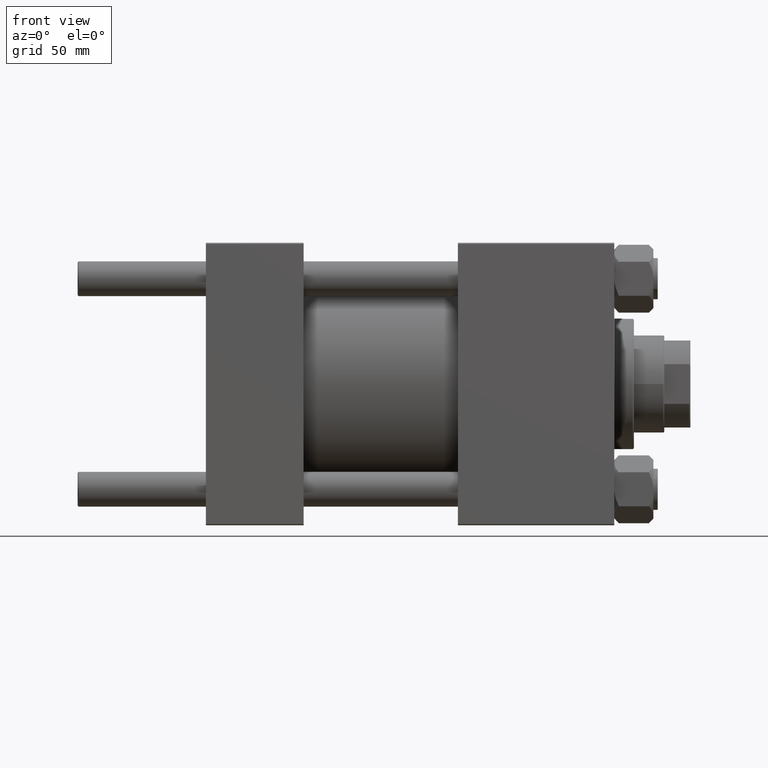
[diagram: clean part render]
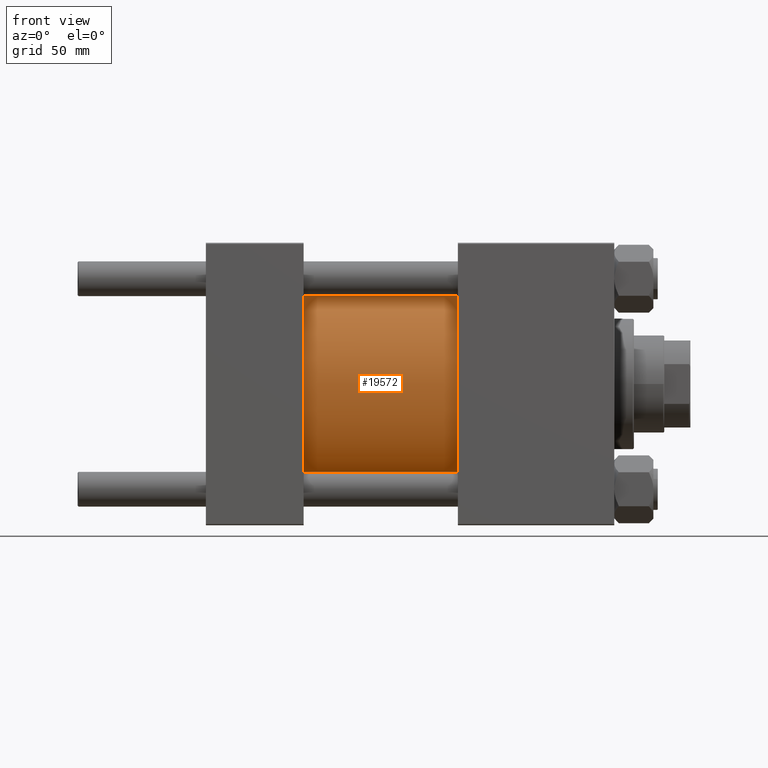
[diagram: same view with one face highlighted and labeled with its STEP entity id]
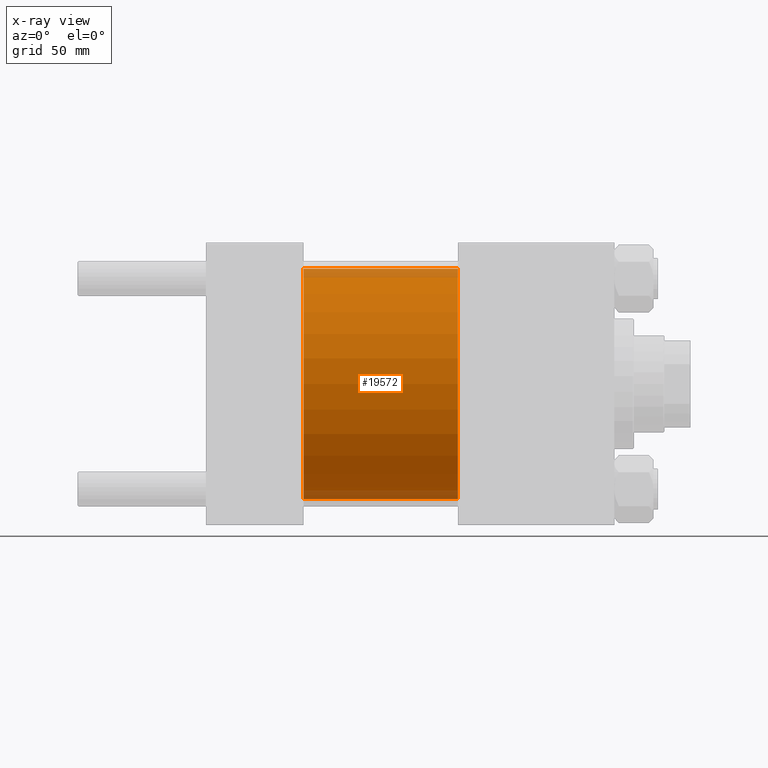
[diagram: x-ray of the same camera — body ghosted, the highlighted face saturated]
A machine part, front view. The second image highlights one B-rep face of the part: STEP entity #19572.
The next image is the same camera in x-ray: the body ghosted, the highlighted face saturated — about 8% of this face is hidden behind the body in this view.
In plain terms, the highlighted cylindrical surface (partial cylindrical patch) has radius 53 mm, axis along (-1, -0, -0).
Its self-contained STEP definition (entity closure, byte-faithful):
#202 = CARTESIAN_POINT ( 'NONE',  ( 115.9999999999999858, 0.000000000000000000, 53.00000000000000711 ) ) ;
#1993 = EDGE_LOOP ( 'NONE', ( #48072, #37482, #46010, #21383 ) ) ;
#5303 = CARTESIAN_POINT ( 'NONE',  ( 115.9999999999999858, 6.490628035480973107E-15, -53.00000000000000711 ) ) ;
#6353 = FACE_OUTER_BOUND ( 'NONE', #1993, .T. ) ;
#6557 = CIRCLE ( 'NONE', #8986, 53.00000000000000711 ) ;
#7100 = CYLINDRICAL_SURFACE ( 'NONE', #15378, 53.00000000000000711 ) ;
#8986 = AXIS2_PLACEMENT_3D ( 'NONE', #29477, #39914, #16766 ) ;
#9273 = CARTESIAN_POINT ( 'NONE',  ( 115.9999999999999858, 0.000000000000000000, 0.000000000000000000 ) ) ;
#11219 = CARTESIAN_POINT ( 'NONE',  ( 45.00000000000000000, 0.000000000000000000, 53.00000000000000711 ) ) ;
#11422 = CIRCLE ( 'NONE', #46355, 53.00000000000000711 ) ;
#13969 = VERTEX_POINT ( 'NONE', #11219 ) ;
#15378 = AXIS2_PLACEMENT_3D ( 'NONE', #45027, #18302, #49824 ) ;
#16488 = LINE ( 'NONE', #202, #20078 ) ;
#16766 = DIRECTION ( 'NONE',  ( 0.000000000000000000, 0.000000000000000000, 1.000000000000000000 ) ) ;
#18302 = DIRECTION ( 'NONE',  ( -1.000000000000000000, -0.000000000000000000, -0.000000000000000000 ) ) ;
#19572 = ADVANCED_FACE ( 'NONE', ( #6353 ), #7100, .T. ) ;
#20078 = VECTOR ( 'NONE', #42449, 1000.000000000000000 ) ;
#20837 = DIRECTION ( 'NONE',  ( -1.000000000000000000, -0.000000000000000000, -0.000000000000000000 ) ) ;
#21012 = VERTEX_POINT ( 'NONE', #21272 ) ;
#21272 = CARTESIAN_POINT ( 'NONE',  ( 115.9999999999999858, 0.000000000000000000, 53.00000000000000711 ) ) ;
#21383 = ORIENTED_EDGE ( 'NONE', *, *, #22290, .T. ) ;
#22290 = EDGE_CURVE ( 'NONE', #13969, #49415, #6557, .T. ) ;
#23343 = VECTOR ( 'NONE', #20837, 1000.000000000000000 ) ;
#23913 = LINE ( 'NONE', #5303, #23343 ) ;
#24804 = DIRECTION ( 'NONE',  ( 1.000000000000000000, 0.000000000000000000, 0.000000000000000000 ) ) ;
#26401 = EDGE_CURVE ( 'NONE', #21012, #47577, #11422, .T. ) ;
#29477 = CARTESIAN_POINT ( 'NONE',  ( 45.00000000000000000, 0.000000000000000000, 0.000000000000000000 ) ) ;
#33087 = CARTESIAN_POINT ( 'NONE',  ( 115.9999999999999858, 6.490628035480973107E-15, -53.00000000000000711 ) ) ;
#33353 = CARTESIAN_POINT ( 'NONE',  ( 45.00000000000000000, 6.490628035480973107E-15, -53.00000000000000711 ) ) ;
#37482 = ORIENTED_EDGE ( 'NONE', *, *, #26401, .F. ) ;
#39914 = DIRECTION ( 'NONE',  ( 1.000000000000000000, -0.000000000000000000, 0.000000000000000000 ) ) ;
#42449 = DIRECTION ( 'NONE',  ( -1.000000000000000000, -0.000000000000000000, -0.000000000000000000 ) ) ;
#43856 = EDGE_CURVE ( 'NONE', #47577, #49415, #23913, .T. ) ;
#45027 = CARTESIAN_POINT ( 'NONE',  ( 115.9999999999999858, 0.000000000000000000, 0.000000000000000000 ) ) ;
#46010 = ORIENTED_EDGE ( 'NONE', *, *, #46717, .T. ) ;
#46355 = AXIS2_PLACEMENT_3D ( 'NONE', #9273, #24804, #47453 ) ;
#46717 = EDGE_CURVE ( 'NONE', #21012, #13969, #16488, .T. ) ;
#47453 = DIRECTION ( 'NONE',  ( 0.000000000000000000, 0.000000000000000000, -1.000000000000000000 ) ) ;
#47577 = VERTEX_POINT ( 'NONE', #33087 ) ;
#48072 = ORIENTED_EDGE ( 'NONE', *, *, #43856, .F. ) ;
#49415 = VERTEX_POINT ( 'NONE', #33353 ) ;
#49824 = DIRECTION ( 'NONE',  ( 0.000000000000000000, 0.000000000000000000, 1.000000000000000000 ) ) ;